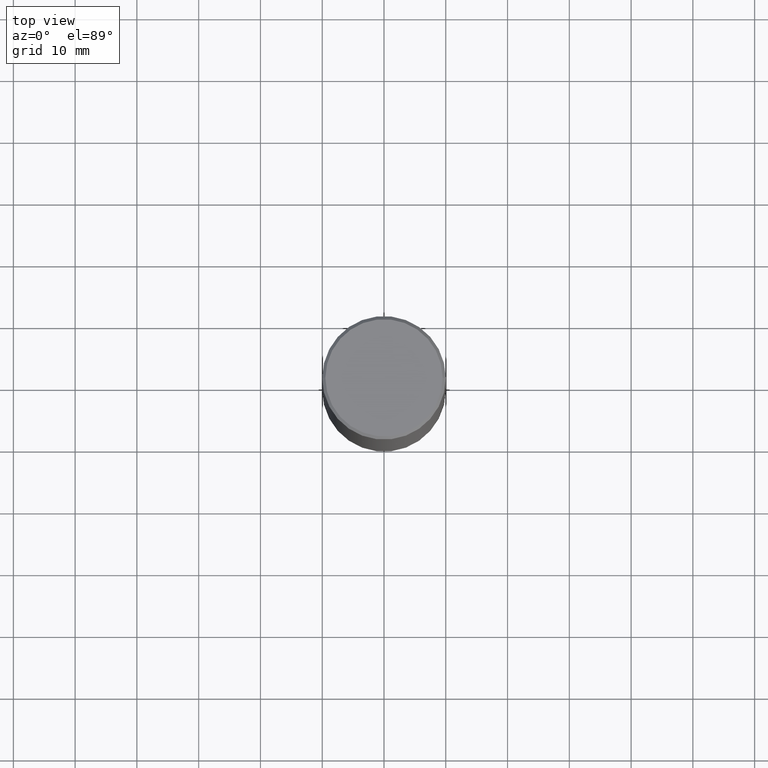
[diagram: clean part render]
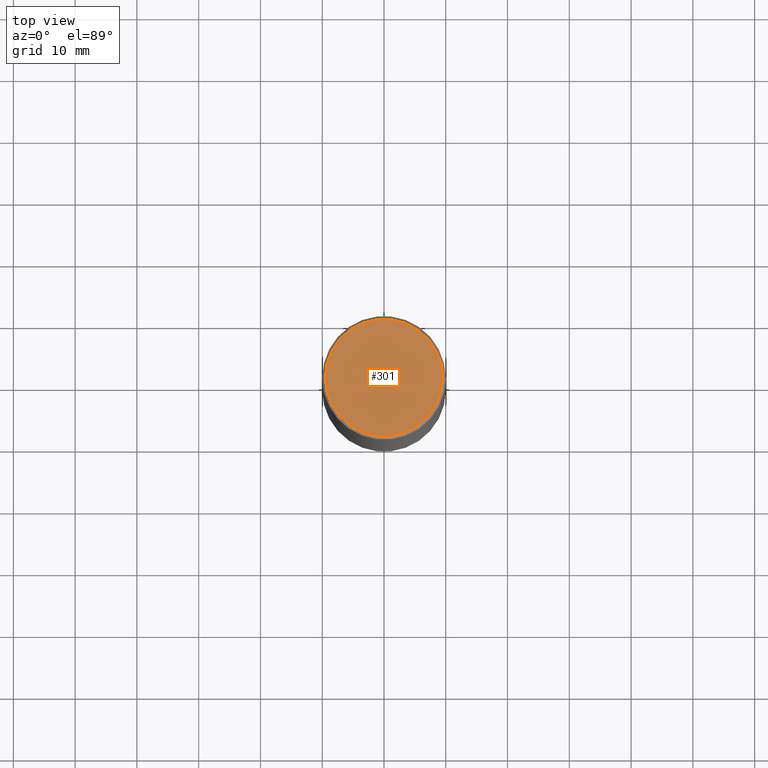
[diagram: same view with one face highlighted and labeled with its STEP entity id]
A machine part, top view. The second image highlights one B-rep face of the part: STEP entity #301.
In plain terms, the highlighted planar face has unit normal (0, -0, -1).
Its self-contained STEP definition (entity closure, byte-faithful):
#7 = EDGE_CURVE ( 'NONE', #286, #351, #149, .T. ) ;
#17 = CARTESIAN_POINT ( 'NONE',  ( 0.3736999999999999211, -2.667287895133367964E-15, 2.262311619753402158E-16 ) ) ;
#18 = AXIS2_PLACEMENT_3D ( 'NONE', #120, #389, #87 ) ;
#37 = ORIENTED_EDGE ( 'NONE', *, *, #69, .T. ) ;
#43 = CIRCLE ( 'NONE', #18, 0.3736999999999999211 ) ;
#55 = EDGE_LOOP ( 'NONE', ( #135, #37 ) ) ;
#69 = EDGE_CURVE ( 'NONE', #351, #286, #43, .T. ) ;
#82 = PLANE ( 'NONE',  #181 ) ;
#87 = DIRECTION ( 'NONE',  ( 1.000000000000000000, -6.982962677686266711E-15, 4.877734241229876808E-29 ) ) ;
#92 = DIRECTION ( 'NONE',  ( 2.438088387897960049E-29, -3.491481338843145188E-15, -1.000000000000000000 ) ) ;
#93 = DIRECTION ( 'NONE',  ( -2.445468806185136597E-29, 3.491481338843145583E-15, 1.000000000000000000 ) ) ;
#120 = CARTESIAN_POINT ( 'NONE',  ( -5.532412495976664402E-45, 7.898818803016371119E-31, 2.262311619753217762E-16 ) ) ;
#135 = ORIENTED_EDGE ( 'NONE', *, *, #7, .T. ) ;
#149 = CIRCLE ( 'NONE', #208, 0.3736999999999999211 ) ;
#181 = AXIS2_PLACEMENT_3D ( 'NONE', #287, #92, #363 ) ;
#208 = AXIS2_PLACEMENT_3D ( 'NONE', #360, #93, #251 ) ;
#251 = DIRECTION ( 'NONE',  ( 1.000000000000000000, -6.982962677686266711E-15, 4.877734241229876808E-29 ) ) ;
#268 = CARTESIAN_POINT ( 'NONE',  ( -0.3736999999999999211, 2.644447966039789453E-15, 2.262311619753034352E-16 ) ) ;
#286 = VERTEX_POINT ( 'NONE', #268 ) ;
#287 = CARTESIAN_POINT ( 'NONE',  ( 2.609533152651356620E-15, 0.3736999999999999211, -1.191650995338022328E-15 ) ) ;
#301 = ADVANCED_FACE ( 'NONE', ( #417 ), #82, .F. ) ;
#351 = VERTEX_POINT ( 'NONE', #17 ) ;
#360 = CARTESIAN_POINT ( 'NONE',  ( -5.532412495976664402E-45, 7.898818803016371119E-31, 2.262311619753217762E-16 ) ) ;
#363 = DIRECTION ( 'NONE',  ( -1.000000000000000000, 6.982962677686265922E-15, -4.876176775795935793E-29 ) ) ;
#389 = DIRECTION ( 'NONE',  ( -2.445468806185136597E-29, 3.491481338843145583E-15, 1.000000000000000000 ) ) ;
#417 = FACE_OUTER_BOUND ( 'NONE', #55, .T. ) ;